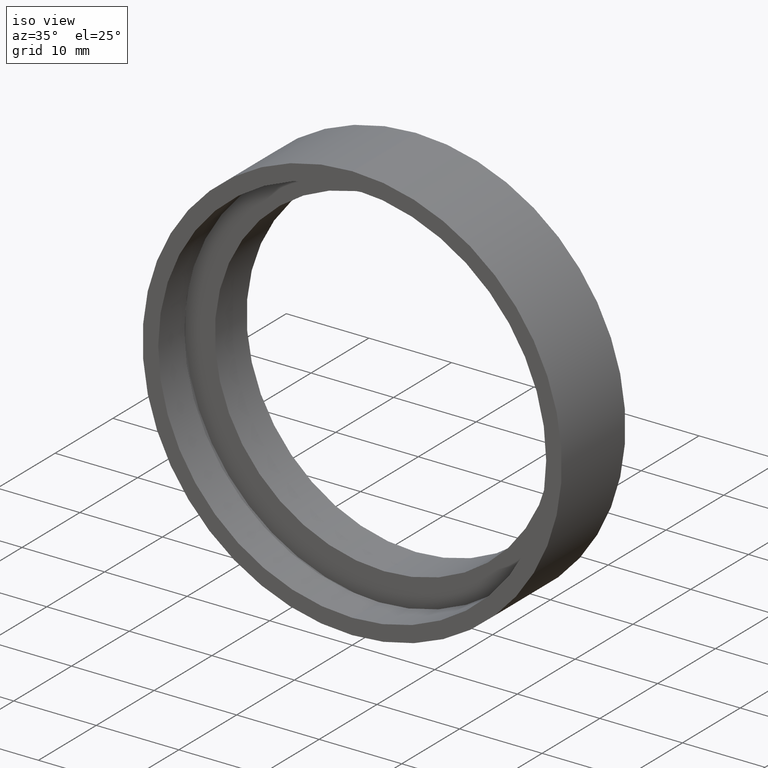
[diagram: clean part render]
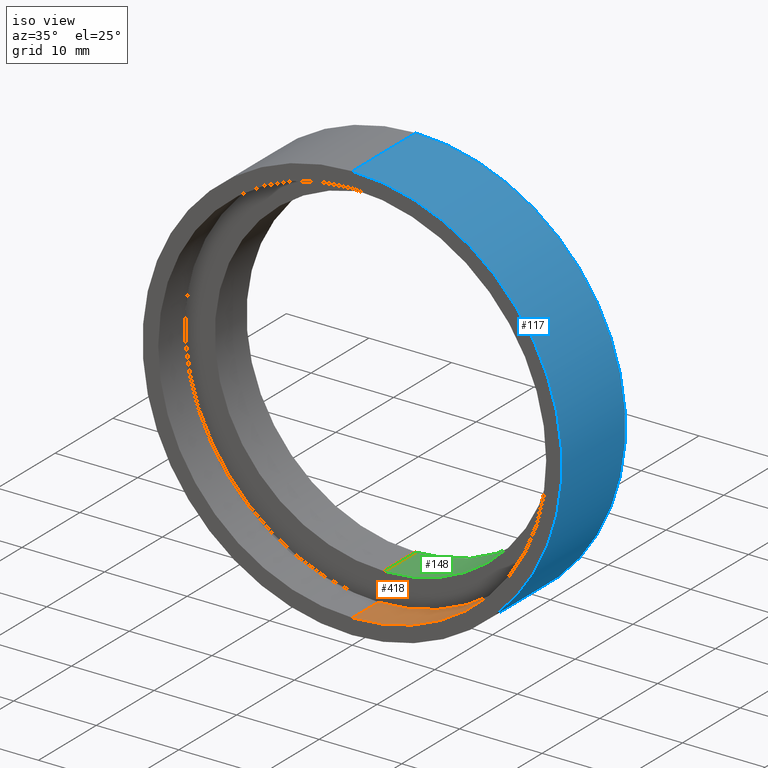
[diagram: same view with three faces highlighted in distinct colors, each labeled with its STEP entity id]
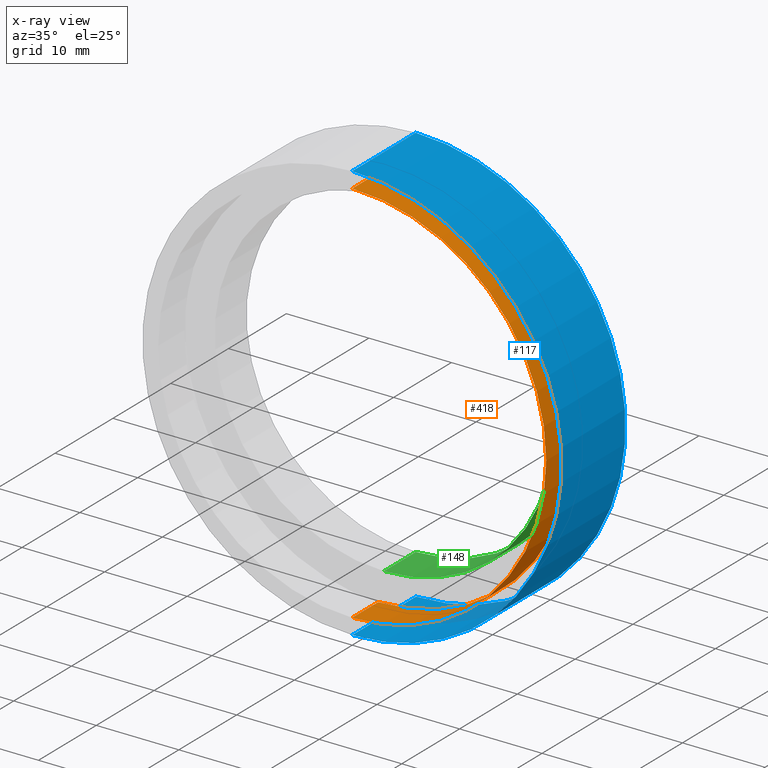
[diagram: x-ray of the same camera — body ghosted, the three highlighted faces saturated]
A machine part, iso view with three faces highlighted in distinct colors.
The next image is the same camera in x-ray (body ghosted, the three faces saturated) — at least one of them is partly hidden behind the body in this view.
Their STEP definitions:

[orange] entity #418 — the highlighted cylindrical surface (partial cylindrical patch) has radius 23.5 mm, axis along (-0, 1, -0).
#13 = DIRECTION ( 'NONE',  ( 0.0000000000000000000, 0.0000000000000000000, 1.000000000000000000 ) ) ;
#14 = AXIS2_PLACEMENT_3D ( 'NONE', #272, #115, #230 ) ;
#15 = CIRCLE ( 'NONE', #102, 23.50000000000000700 ) ;
#19 = VERTEX_POINT ( 'NONE', #367 ) ;
#34 = DIRECTION ( 'NONE',  ( -0.0000000000000000000, 1.000000000000000000, -0.0000000000000000000 ) ) ;
#35 = EDGE_LOOP ( 'NONE', ( #124, #277, #345, #216 ) ) ;
#36 = FACE_OUTER_BOUND ( 'NONE', #35, .T. ) ;
#38 = CARTESIAN_POINT ( 'NONE',  ( 0.0000000000000000000, 0.0000000000000000000, 23.50000000000000700 ) ) ;
#40 = CARTESIAN_POINT ( 'NONE',  ( 2.877919977996281100E-015, 0.0000000000000000000, -23.50000000000000700 ) ) ;
#45 = AXIS2_PLACEMENT_3D ( 'NONE', #203, #46, #359 ) ;
#46 = DIRECTION ( 'NONE',  ( -0.0000000000000000000, 1.000000000000000000, -0.0000000000000000000 ) ) ;
#48 = CYLINDRICAL_SURFACE ( 'NONE', #14, 23.50000000000000700 ) ;
#51 = DIRECTION ( 'NONE',  ( -0.0000000000000000000, 1.000000000000000000, -0.0000000000000000000 ) ) ;
#90 = CARTESIAN_POINT ( 'NONE',  ( 2.877919977996281100E-015, 60.02082041425541100, -23.50000000000000700 ) ) ;
#94 = LINE ( 'NONE', #339, #198 ) ;
#102 = AXIS2_PLACEMENT_3D ( 'NONE', #250, #376, #13 ) ;
#103 = EDGE_CURVE ( 'NONE', #140, #389, #94, .T. ) ;
#115 = DIRECTION ( 'NONE',  ( -0.0000000000000000000, 1.000000000000000000, -0.0000000000000000000 ) ) ;
#124 = ORIENTED_EDGE ( 'NONE', *, *, #327, .F. ) ;
#125 = LINE ( 'NONE', #90, #328 ) ;
#140 = VERTEX_POINT ( 'NONE', #38 ) ;
#198 = VECTOR ( 'NONE', #34, 1000.000000000000000 ) ;
#203 = CARTESIAN_POINT ( 'NONE',  ( 0.0000000000000000000, 0.0000000000000000000, 0.0000000000000000000 ) ) ;
#216 = ORIENTED_EDGE ( 'NONE', *, *, #371, .T. ) ;
#230 = DIRECTION ( 'NONE',  ( 0.0000000000000000000, 0.0000000000000000000, 1.000000000000000000 ) ) ;
#236 = CIRCLE ( 'NONE', #45, 23.50000000000000700 ) ;
#250 = CARTESIAN_POINT ( 'NONE',  ( 0.0000000000000000000, 4.499999999999997300, 0.0000000000000000000 ) ) ;
#272 = CARTESIAN_POINT ( 'NONE',  ( 0.0000000000000000000, 60.02082041425541100, 0.0000000000000000000 ) ) ;
#277 = ORIENTED_EDGE ( 'NONE', *, *, #424, .F. ) ;
#286 = VERTEX_POINT ( 'NONE', #40 ) ;
#327 = EDGE_CURVE ( 'NONE', #286, #19, #125, .T. ) ;
#328 = VECTOR ( 'NONE', #51, 1000.000000000000000 ) ;
#339 = CARTESIAN_POINT ( 'NONE',  ( 0.0000000000000000000, 60.02082041425541100, 23.50000000000000700 ) ) ;
#345 = ORIENTED_EDGE ( 'NONE', *, *, #103, .T. ) ;
#359 = DIRECTION ( 'NONE',  ( 0.0000000000000000000, 0.0000000000000000000, 1.000000000000000000 ) ) ;
#367 = CARTESIAN_POINT ( 'NONE',  ( 2.877919977996281100E-015, 4.499999999999997300, -23.50000000000000700 ) ) ;
#371 = EDGE_CURVE ( 'NONE', #389, #19, #15, .T. ) ;
#376 = DIRECTION ( 'NONE',  ( -0.0000000000000000000, 1.000000000000000000, -0.0000000000000000000 ) ) ;
#389 = VERTEX_POINT ( 'NONE', #396 ) ;
#396 = CARTESIAN_POINT ( 'NONE',  ( 0.0000000000000000000, 4.499999999999997300, 23.50000000000000700 ) ) ;
#418 = ADVANCED_FACE ( 'NONE', ( #36 ), #48, .F. ) ;
#424 = EDGE_CURVE ( 'NONE', #140, #286, #236, .T. ) ;

[blue] entity #117 — the highlighted cylindrical surface (partial cylindrical patch) has radius 25.4 mm, axis along (-0, 1, -0).
#21 = CARTESIAN_POINT ( 'NONE',  ( 0.0000000000000000000, 0.0000000000000000000, 25.40000000000000200 ) ) ;
#26 = EDGE_CURVE ( 'NONE', #151, #168, #407, .T. ) ;
#29 = DIRECTION ( 'NONE',  ( -0.0000000000000000000, 1.000000000000000000, -0.0000000000000000000 ) ) ;
#41 = CARTESIAN_POINT ( 'NONE',  ( 0.0000000000000000000, 0.0000000000000000000, 0.0000000000000000000 ) ) ;
#50 = VECTOR ( 'NONE', #432, 1000.000000000000000 ) ;
#52 = CARTESIAN_POINT ( 'NONE',  ( 3.110602869834277300E-015, 60.02082041425541100, -25.40000000000000200 ) ) ;
#56 = EDGE_LOOP ( 'NONE', ( #384, #431, #408, #264 ) ) ;
#66 = AXIS2_PLACEMENT_3D ( 'NONE', #41, #109, #420 ) ;
#109 = DIRECTION ( 'NONE',  ( -0.0000000000000000000, 1.000000000000000000, -0.0000000000000000000 ) ) ;
#117 = ADVANCED_FACE ( 'NONE', ( #347 ), #341, .T. ) ;
#118 = CIRCLE ( 'NONE', #66, 25.40000000000000200 ) ;
#121 = DIRECTION ( 'NONE',  ( 0.0000000000000000000, 0.0000000000000000000, 1.000000000000000000 ) ) ;
#144 = VERTEX_POINT ( 'NONE', #21 ) ;
#151 = VERTEX_POINT ( 'NONE', #363 ) ;
#155 = EDGE_CURVE ( 'NONE', #144, #169, #118, .T. ) ;
#163 = EDGE_CURVE ( 'NONE', #169, #168, #251, .T. ) ;
#168 = VERTEX_POINT ( 'NONE', #390 ) ;
#169 = VERTEX_POINT ( 'NONE', #366 ) ;
#191 = DIRECTION ( 'NONE',  ( 0.0000000000000000000, 0.0000000000000000000, 1.000000000000000000 ) ) ;
#241 = DIRECTION ( 'NONE',  ( -0.0000000000000000000, 1.000000000000000000, -0.0000000000000000000 ) ) ;
#251 = LINE ( 'NONE', #52, #395 ) ;
#264 = ORIENTED_EDGE ( 'NONE', *, *, #273, .F. ) ;
#266 = CARTESIAN_POINT ( 'NONE',  ( 0.0000000000000000000, 10.99999999999999600, 0.0000000000000000000 ) ) ;
#273 = EDGE_CURVE ( 'NONE', #144, #151, #281, .T. ) ;
#281 = LINE ( 'NONE', #360, #50 ) ;
#334 = DIRECTION ( 'NONE',  ( -0.0000000000000000000, 1.000000000000000000, -0.0000000000000000000 ) ) ;
#341 = CYLINDRICAL_SURFACE ( 'NONE', #346, 25.40000000000000200 ) ;
#346 = AXIS2_PLACEMENT_3D ( 'NONE', #419, #29, #191 ) ;
#347 = FACE_OUTER_BOUND ( 'NONE', #56, .T. ) ;
#360 = CARTESIAN_POINT ( 'NONE',  ( 0.0000000000000000000, 60.02082041425541100, 25.40000000000000200 ) ) ;
#363 = CARTESIAN_POINT ( 'NONE',  ( 0.0000000000000000000, 10.99999999999999600, 25.40000000000000200 ) ) ;
#366 = CARTESIAN_POINT ( 'NONE',  ( 3.110602869834277300E-015, 0.0000000000000000000, -25.40000000000000200 ) ) ;
#384 = ORIENTED_EDGE ( 'NONE', *, *, #155, .T. ) ;
#390 = CARTESIAN_POINT ( 'NONE',  ( 3.110602869834277300E-015, 10.99999999999999600, -25.40000000000000200 ) ) ;
#395 = VECTOR ( 'NONE', #241, 1000.000000000000000 ) ;
#407 = CIRCLE ( 'NONE', #414, 25.40000000000000200 ) ;
#408 = ORIENTED_EDGE ( 'NONE', *, *, #26, .F. ) ;
#414 = AXIS2_PLACEMENT_3D ( 'NONE', #266, #334, #121 ) ;
#419 = CARTESIAN_POINT ( 'NONE',  ( 0.0000000000000000000, 60.02082041425541100, 0.0000000000000000000 ) ) ;
#420 = DIRECTION ( 'NONE',  ( 0.0000000000000000000, 0.0000000000000000000, 1.000000000000000000 ) ) ;
#431 = ORIENTED_EDGE ( 'NONE', *, *, #163, .T. ) ;
#432 = DIRECTION ( 'NONE',  ( -0.0000000000000000000, 1.000000000000000000, -0.0000000000000000000 ) ) ;

[green] entity #148 — the highlighted cylindrical surface (partial cylindrical patch) has radius 20.5 mm, axis along (-0, 1, -0).
#3 = CARTESIAN_POINT ( 'NONE',  ( 2.510525938252074900E-015, 60.02082041425541100, -20.50000000000000700 ) ) ;
#8 = VERTEX_POINT ( 'NONE', #174 ) ;
#12 = CARTESIAN_POINT ( 'NONE',  ( 2.510525938252074900E-015, 10.99999999999999600, -20.50000000000000700 ) ) ;
#16 = EDGE_CURVE ( 'NONE', #8, #180, #321, .T. ) ;
#33 = DIRECTION ( 'NONE',  ( -0.0000000000000000000, 1.000000000000000000, -0.0000000000000000000 ) ) ;
#43 = LINE ( 'NONE', #3, #256 ) ;
#49 = VERTEX_POINT ( 'NONE', #204 ) ;
#76 = EDGE_CURVE ( 'NONE', #190, #180, #43, .T. ) ;
#80 = DIRECTION ( 'NONE',  ( 0.0000000000000000000, 0.0000000000000000000, 1.000000000000000000 ) ) ;
#85 = AXIS2_PLACEMENT_3D ( 'NONE', #304, #218, #171 ) ;
#89 = AXIS2_PLACEMENT_3D ( 'NONE', #205, #122, #311 ) ;
#111 = FACE_OUTER_BOUND ( 'NONE', #362, .T. ) ;
#122 = DIRECTION ( 'NONE',  ( -0.0000000000000000000, 1.000000000000000000, -0.0000000000000000000 ) ) ;
#128 = DIRECTION ( 'NONE',  ( -0.0000000000000000000, 1.000000000000000000, -0.0000000000000000000 ) ) ;
#134 = EDGE_CURVE ( 'NONE', #49, #8, #297, .T. ) ;
#139 = CARTESIAN_POINT ( 'NONE',  ( 2.510525938252074900E-015, 5.499999999999998200, -20.50000000000000700 ) ) ;
#148 = ADVANCED_FACE ( 'NONE', ( #111 ), #351, .F. ) ;
#171 = DIRECTION ( 'NONE',  ( 0.0000000000000000000, 0.0000000000000000000, 1.000000000000000000 ) ) ;
#172 = CARTESIAN_POINT ( 'NONE',  ( 0.0000000000000000000, 10.99999999999999600, 0.0000000000000000000 ) ) ;
#174 = CARTESIAN_POINT ( 'NONE',  ( 0.0000000000000000000, 10.99999999999999600, 20.50000000000000700 ) ) ;
#180 = VERTEX_POINT ( 'NONE', #12 ) ;
#190 = VERTEX_POINT ( 'NONE', #139 ) ;
#204 = CARTESIAN_POINT ( 'NONE',  ( 0.0000000000000000000, 5.499999999999998200, 20.50000000000000700 ) ) ;
#205 = CARTESIAN_POINT ( 'NONE',  ( 0.0000000000000000000, 5.499999999999998200, 0.0000000000000000000 ) ) ;
#212 = ORIENTED_EDGE ( 'NONE', *, *, #397, .F. ) ;
#218 = DIRECTION ( 'NONE',  ( -0.0000000000000000000, 1.000000000000000000, -0.0000000000000000000 ) ) ;
#220 = ORIENTED_EDGE ( 'NONE', *, *, #76, .F. ) ;
#256 = VECTOR ( 'NONE', #33, 1000.000000000000000 ) ;
#283 = ORIENTED_EDGE ( 'NONE', *, *, #16, .T. ) ;
#297 = LINE ( 'NONE', #410, #337 ) ;
#299 = CIRCLE ( 'NONE', #89, 20.50000000000000700 ) ;
#304 = CARTESIAN_POINT ( 'NONE',  ( 0.0000000000000000000, 60.02082041425541100, 0.0000000000000000000 ) ) ;
#306 = AXIS2_PLACEMENT_3D ( 'NONE', #172, #128, #80 ) ;
#311 = DIRECTION ( 'NONE',  ( 0.0000000000000000000, 0.0000000000000000000, 1.000000000000000000 ) ) ;
#314 = ORIENTED_EDGE ( 'NONE', *, *, #134, .T. ) ;
#321 = CIRCLE ( 'NONE', #306, 20.50000000000000700 ) ;
#337 = VECTOR ( 'NONE', #409, 1000.000000000000000 ) ;
#351 = CYLINDRICAL_SURFACE ( 'NONE', #85, 20.50000000000000700 ) ;
#362 = EDGE_LOOP ( 'NONE', ( #220, #212, #314, #283 ) ) ;
#397 = EDGE_CURVE ( 'NONE', #49, #190, #299, .T. ) ;
#409 = DIRECTION ( 'NONE',  ( -0.0000000000000000000, 1.000000000000000000, -0.0000000000000000000 ) ) ;
#410 = CARTESIAN_POINT ( 'NONE',  ( 0.0000000000000000000, 60.02082041425541100, 20.50000000000000700 ) ) ;